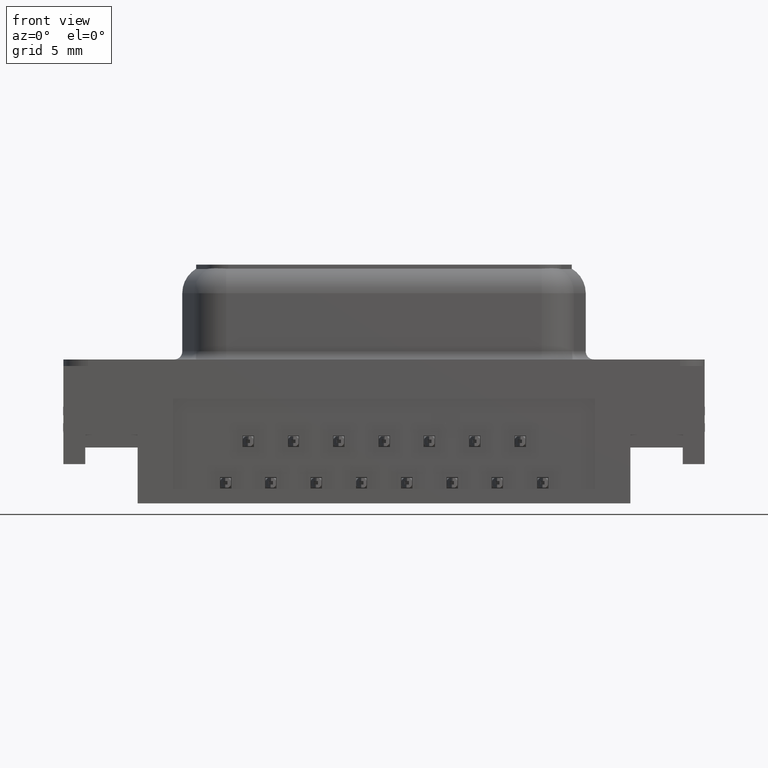
[diagram: clean part render]
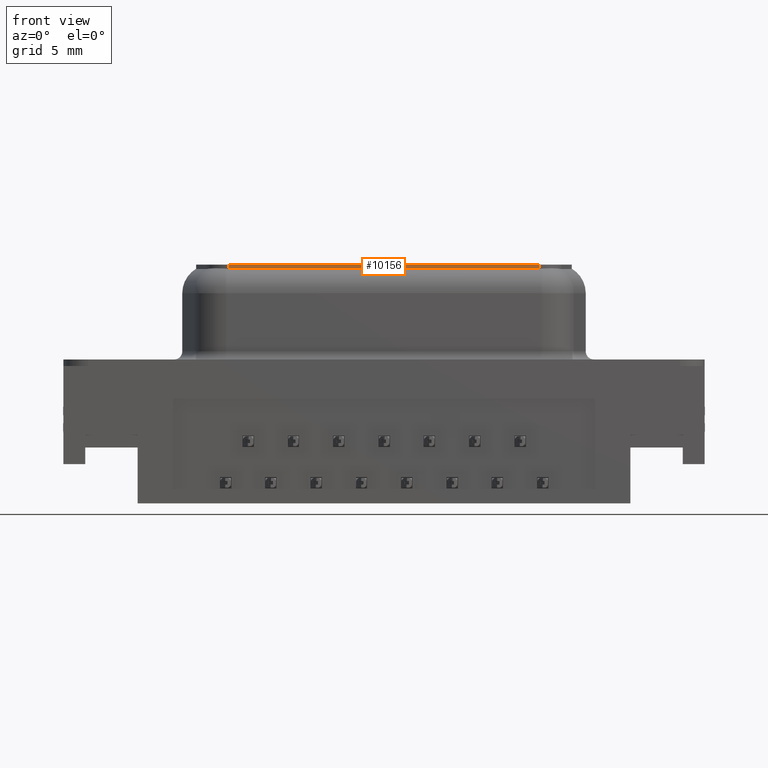
[diagram: same view with one face highlighted and labeled with its STEP entity id]
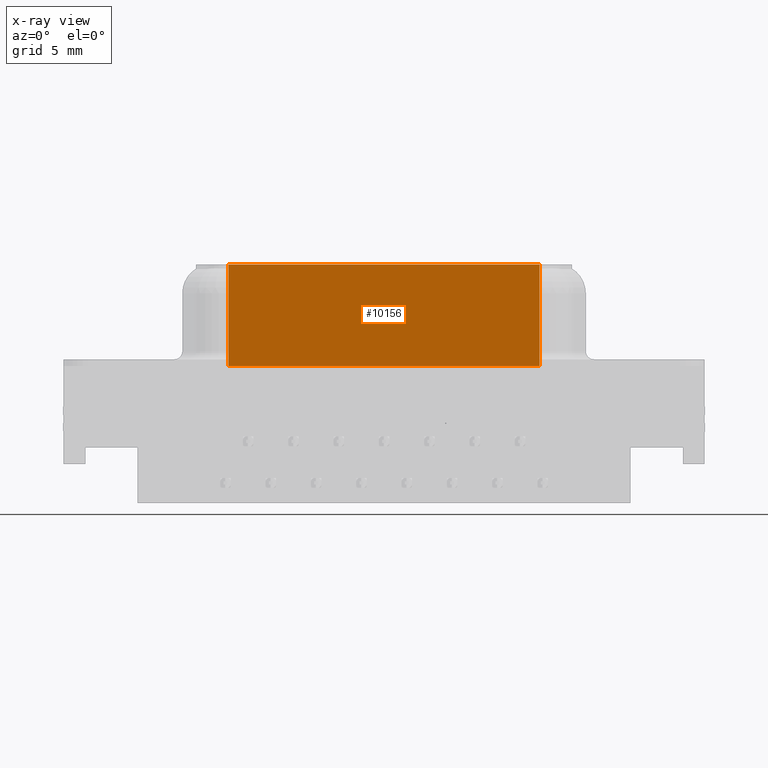
[diagram: x-ray of the same camera — body ghosted, the highlighted face saturated]
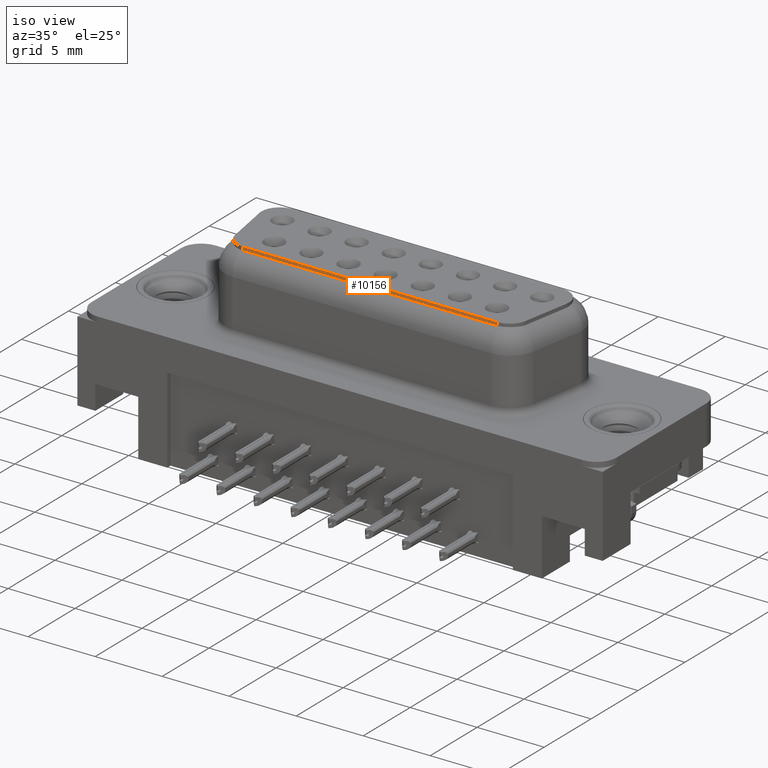
[diagram: same view with one face highlighted and labeled with its STEP entity id]
A machine part, front view. The second image highlights one B-rep face of the part: STEP entity #10156.
The next image is the same camera in x-ray: the body ghosted, the highlighted face saturated — about 0% of this face is hidden behind the body in this view.
A second angle (iso view) of the same face is appended — the face is thin or edge-on in the first view.
In plain terms, the highlighted planar face has unit normal (-0, 1, 0).
Its self-contained STEP definition (entity closure, byte-faithful):
#196 = VERTEX_POINT ( 'NONE', #19711 ) ;
#264 = VECTOR ( 'NONE', #20547, 1000.000000000000000 ) ;
#1570 = CARTESIAN_POINT ( 'NONE',  ( 26.17285556752040400, -3.099999999999999600, 6.200000000000000200 ) ) ;
#1885 = FACE_OUTER_BOUND ( 'NONE', #7361, .T. ) ;
#2050 = LINE ( 'NONE', #5271, #12086 ) ;
#3297 = LINE ( 'NONE', #16608, #24581 ) ;
#3508 = CARTESIAN_POINT ( 'NONE',  ( 7.147144432479601400, -3.100000000000001000, 6.200000000000000200 ) ) ;
#3562 = ORIENTED_EDGE ( 'NONE', *, *, #11172, .T. ) ;
#3659 = DIRECTION ( 'NONE',  ( -1.000000000000000000, -1.367667781506886000E-016, 0.0000000000000000000 ) ) ;
#4062 = VERTEX_POINT ( 'NONE', #16797 ) ;
#5271 = CARTESIAN_POINT ( 'NONE',  ( 26.17285556752040400, -3.099999999999999600, 0.0000000000000000000 ) ) ;
#5590 = LINE ( 'NONE', #8552, #264 ) ;
#5613 = LINE ( 'NONE', #3508, #11561 ) ;
#7287 = DIRECTION ( 'NONE',  ( 1.000000000000000000, 1.367667781506885800E-016, -0.0000000000000000000 ) ) ;
#7361 = EDGE_LOOP ( 'NONE', ( #15362, #25936, #7742, #3562 ) ) ;
#7563 = DIRECTION ( 'NONE',  ( -0.0000000000000000000, -0.0000000000000000000, -1.000000000000000000 ) ) ;
#7742 = ORIENTED_EDGE ( 'NONE', *, *, #11892, .F. ) ;
#8137 = VERTEX_POINT ( 'NONE', #15392 ) ;
#8552 = CARTESIAN_POINT ( 'NONE',  ( 26.17285556752040400, -3.099999999999999600, 6.200000000000000200 ) ) ;
#8946 = VERTEX_POINT ( 'NONE', #10772 ) ;
#10156 = ADVANCED_FACE ( 'NONE', ( #1885 ), #11465, .F. ) ;
#10772 = CARTESIAN_POINT ( 'NONE',  ( 7.147144432479601400, -3.100000000000001000, 6.200000000000000200 ) ) ;
#11172 = EDGE_CURVE ( 'NONE', #8946, #4062, #5613, .T. ) ;
#11465 = PLANE ( 'NONE',  #24941 ) ;
#11561 = VECTOR ( 'NONE', #7563, 1000.000000000000000 ) ;
#11751 = EDGE_CURVE ( 'NONE', #8137, #196, #5590, .T. ) ;
#11892 = EDGE_CURVE ( 'NONE', #8946, #8137, #3297, .T. ) ;
#12086 = VECTOR ( 'NONE', #7287, 1000.000000000000000 ) ;
#15362 = ORIENTED_EDGE ( 'NONE', *, *, #18230, .T. ) ;
#15392 = CARTESIAN_POINT ( 'NONE',  ( 26.17285556752040400, -3.099999999999999600, 6.200000000000000200 ) ) ;
#15648 = DIRECTION ( 'NONE',  ( -1.367667781506886000E-016, 1.000000000000000000, 0.0000000000000000000 ) ) ;
#16608 = CARTESIAN_POINT ( 'NONE',  ( 26.17285556752040400, -3.099999999999999600, 6.200000000000000200 ) ) ;
#16797 = CARTESIAN_POINT ( 'NONE',  ( 7.147144432479601400, -3.100000000000001400, 0.0000000000000000000 ) ) ;
#18230 = EDGE_CURVE ( 'NONE', #4062, #196, #2050, .T. ) ;
#19711 = CARTESIAN_POINT ( 'NONE',  ( 26.17285556752040400, -3.099999999999999600, 0.0000000000000000000 ) ) ;
#20547 = DIRECTION ( 'NONE',  ( -0.0000000000000000000, -0.0000000000000000000, -1.000000000000000000 ) ) ;
#22640 = DIRECTION ( 'NONE',  ( 1.000000000000000000, 1.367667781506885800E-016, -0.0000000000000000000 ) ) ;
#24581 = VECTOR ( 'NONE', #22640, 1000.000000000000000 ) ;
#24941 = AXIS2_PLACEMENT_3D ( 'NONE', #1570, #15648, #3659 ) ;
#25936 = ORIENTED_EDGE ( 'NONE', *, *, #11751, .F. ) ;